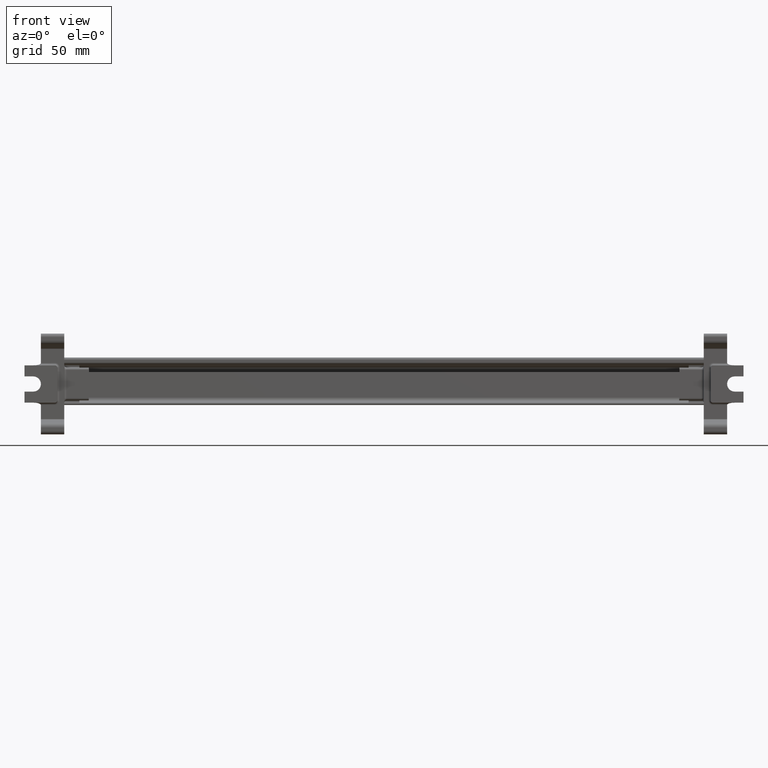
[diagram: clean part render]
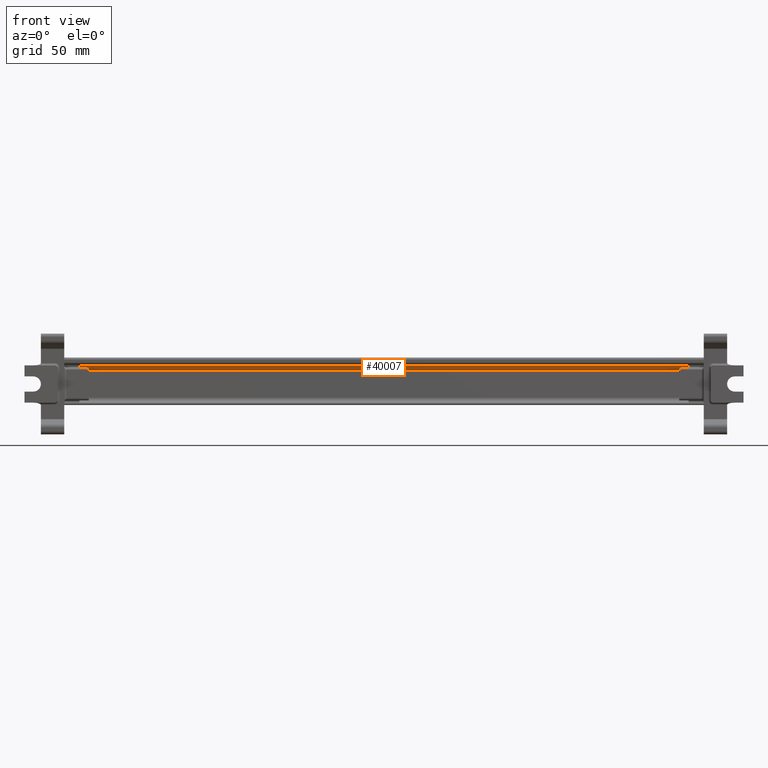
[diagram: same view with one face highlighted and labeled with its STEP entity id]
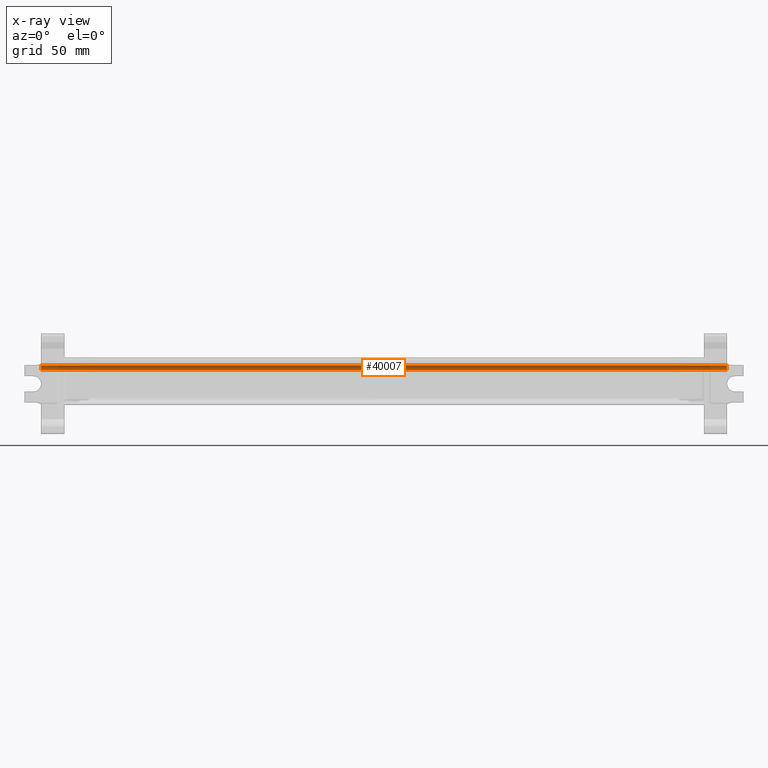
[diagram: x-ray of the same camera — body ghosted, the highlighted face saturated]
A machine part, front view. The second image highlights one B-rep face of the part: STEP entity #40007.
The next image is the same camera in x-ray: the body ghosted, the highlighted face saturated — about 5% of this face is hidden behind the body in this view.
In plain terms, the highlighted cylindrical surface (edge-blend (fillet) strip) has radius 2 mm, axis along (-1, 0, 0).
Its self-contained STEP definition (entity closure, byte-faithful):
#447 = EDGE_LOOP ( 'NONE', ( #9335, #20512, #9322, #20501 ) ) ;
#5590 = VECTOR ( 'NONE', #36964, 1000.000000000000000 ) ;
#7454 = VERTEX_POINT ( 'NONE', #18786 ) ;
#7494 = VERTEX_POINT ( 'NONE', #18808 ) ;
#7543 = VERTEX_POINT ( 'NONE', #14689 ) ;
#7571 = VERTEX_POINT ( 'NONE', #14803 ) ;
#9322 = ORIENTED_EDGE ( 'NONE', *, *, #41665, .T. ) ;
#9335 = ORIENTED_EDGE ( 'NONE', *, *, #40490, .F. ) ;
#14689 = CARTESIAN_POINT ( 'NONE',  ( -248.8526976958254100, 71.24773007458699700, 46.07394444197193200 ) ) ;
#14803 = CARTESIAN_POINT ( 'NONE',  ( 44.94730230417454200, 71.24773007458468000, 46.07394444197080200 ) ) ;
#18786 = CARTESIAN_POINT ( 'NONE',  ( 44.94730230417457100, 73.21282648293073700, 44.07424903034183200 ) ) ;
#18808 = CARTESIAN_POINT ( 'NONE',  ( -248.8526976958254100, 73.21282648293305300, 44.07424903034296200 ) ) ;
#20501 = ORIENTED_EDGE ( 'NONE', *, *, #40460, .F. ) ;
#20512 = ORIENTED_EDGE ( 'NONE', *, *, #40402, .T. ) ;
#25700 = AXIS2_PLACEMENT_3D ( 'NONE', #47156, #47140, #47072 ) ;
#29255 = CIRCLE ( 'NONE', #29326, 2.000000000000029300 ) ;
#29326 = AXIS2_PLACEMENT_3D ( 'NONE', #47485, #47431, #47487 ) ;
#29413 = CIRCLE ( 'NONE', #29473, 2.000000000000029300 ) ;
#29473 = AXIS2_PLACEMENT_3D ( 'NONE', #48226, #48272, #48219 ) ;
#29481 = VECTOR ( 'NONE', #46116, 1000.000000000000000 ) ;
#36964 = DIRECTION ( 'NONE',  ( -1.000000000000000000, 7.897574933817843200E-015, 3.853197191115062900E-015 ) ) ;
#36972 = LINE ( 'NONE', #36974, #5590 ) ;
#36974 = CARTESIAN_POINT ( 'NONE',  ( -150.8526976958254700, 71.24773007458621500, 46.07394444197155500 ) ) ;
#40007 = ADVANCED_FACE ( 'NONE', ( #47098 ), #47080, .F. ) ;
#40402 = EDGE_CURVE ( 'NONE', #7454, #7571, #29255, .T. ) ;
#40460 = EDGE_CURVE ( 'NONE', #7494, #7543, #29413, .T. ) ;
#40490 = EDGE_CURVE ( 'NONE', #7454, #7494, #46084, .T. ) ;
#41665 = EDGE_CURVE ( 'NONE', #7571, #7543, #36972, .T. ) ;
#46084 = LINE ( 'NONE', #46112, #29481 ) ;
#46112 = CARTESIAN_POINT ( 'NONE',  ( -150.8526976958254400, 73.21282648293227200, 44.07424903034258500 ) ) ;
#46116 = DIRECTION ( 'NONE',  ( -1.000000000000000000, 7.897574933817843200E-015, 3.853197191115062900E-015 ) ) ;
#47072 = DIRECTION ( 'NONE',  ( 0.0000000000000000000, -6.107034461466548000E-007, 0.9999999999998135900 ) ) ;
#47080 = CYLINDRICAL_SURFACE ( 'NONE', #25700, 2.000000000000034600 ) ;
#47098 = FACE_OUTER_BOUND ( 'NONE', #447, .T. ) ;
#47140 = DIRECTION ( 'NONE',  ( -1.000000000000000000, 7.897574933817843200E-015, 3.853197191115062900E-015 ) ) ;
#47156 = CARTESIAN_POINT ( 'NONE',  ( -150.8526976958254700, 71.21282648293230000, 44.07424903034255000 ) ) ;
#47431 = DIRECTION ( 'NONE',  ( 1.000000000000000000, -7.931712594434356000E-015, -3.864784591637045400E-015 ) ) ;
#47485 = CARTESIAN_POINT ( 'NONE',  ( 44.94730230417454200, 71.21282648293075100, 44.07424903034179700 ) ) ;
#47487 = DIRECTION ( 'NONE',  ( 6.938893903907126600E-015, 1.000000000000000000, 0.0000000000000000000 ) ) ;
#48219 = DIRECTION ( 'NONE',  ( 1.387778780781425300E-014, 1.000000000000000000, 0.0000000000000000000 ) ) ;
#48226 = CARTESIAN_POINT ( 'NONE',  ( -248.8526976958254100, 71.21282648293308200, 44.07424903034292600 ) ) ;
#48272 = DIRECTION ( 'NONE',  ( 1.000000000000000000, -7.931712594434356000E-015, -3.864784591637045400E-015 ) ) ;